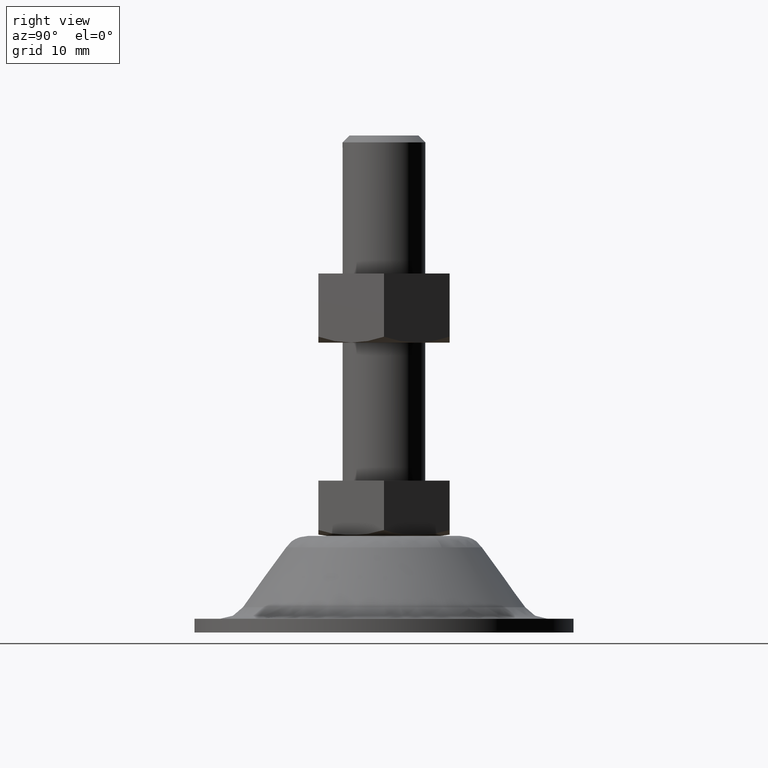
[diagram: clean part render]
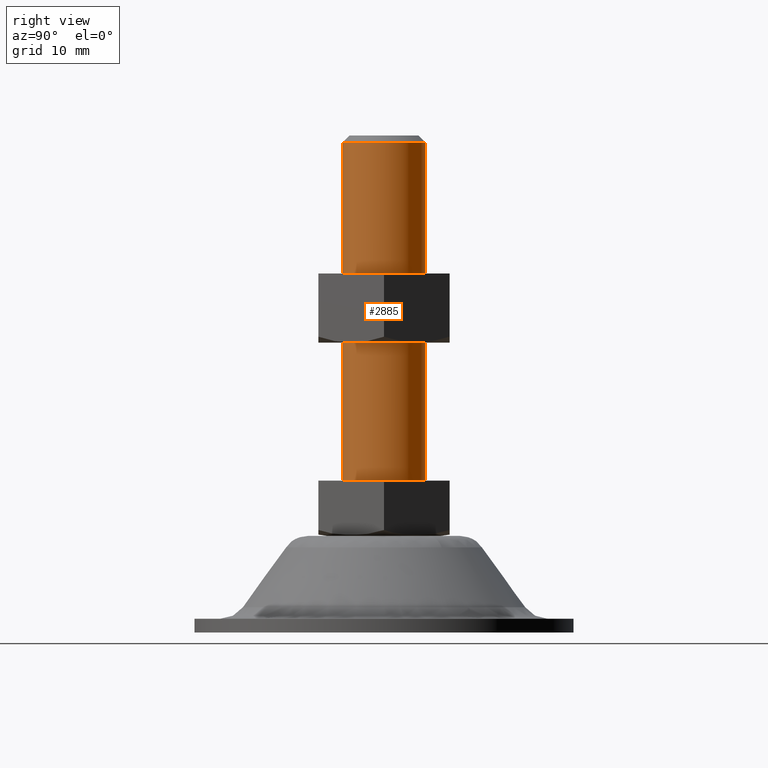
[diagram: same view with one face highlighted and labeled with its STEP entity id]
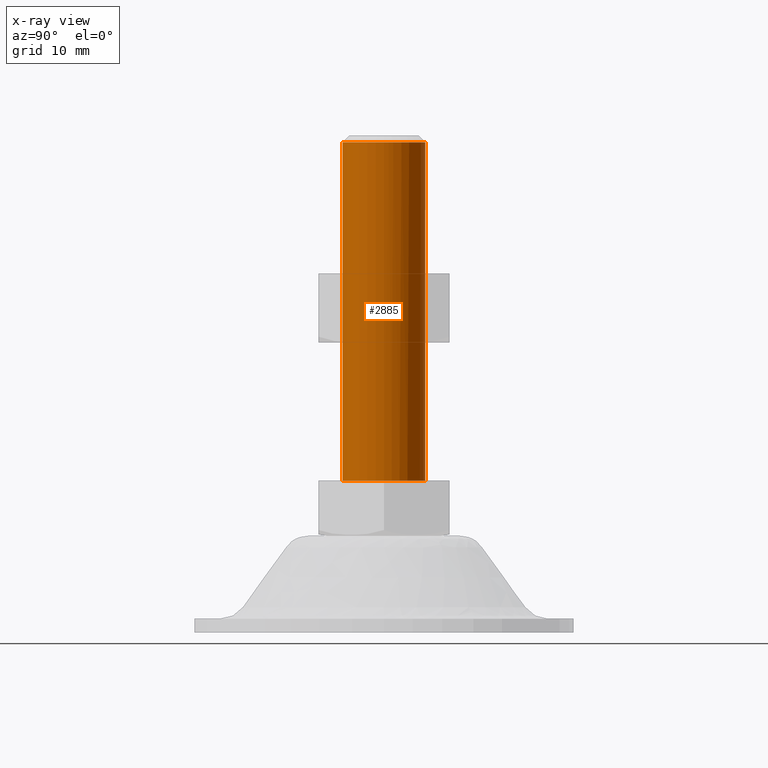
[diagram: x-ray of the same camera — body ghosted, the highlighted face saturated]
A machine part, right view. The second image highlights one B-rep face of the part: STEP entity #2885.
The next image is the same camera in x-ray: the body ghosted, the highlighted face saturated — about 0% of this face is hidden behind the body in this view.
In plain terms, the highlighted face is a freeform B-spline surface patch.
Its self-contained STEP definition (entity closure, byte-faithful):
#2430=CARTESIAN_POINT('',(0.395414218472096,5.986956455167575,70.999999999979764));
#2431=VERTEX_POINT('',#2430);
#2432=CARTESIAN_POINT('',(6.0,0.0,71.0));
#2433=VERTEX_POINT('',#2432);
#2434=CARTESIAN_POINT('',(0.395414218472096,5.986956455167575,70.999999999979764));
#2435=CARTESIAN_POINT('',(6.0,5.616796270400121,70.999999999999972));
#2436=CARTESIAN_POINT('',(6.0,0.0,71.0));
#2444=(BOUNDED_CURVE()B_SPLINE_CURVE(2,(#2434,#2435,#2436),.UNSPECIFIED.,.F.,.U.)B_SPLINE_CURVE_WITH_KNOTS((3,3),(0.761505472935514,1.0),.UNSPECIFIED.)CURVE()GEOMETRIC_REPRESENTATION_ITEM()RATIONAL_B_SPLINE_CURVE((0.974281704163800,0.720586281194763,1.0))REPRESENTATION_ITEM(''));
#2445=EDGE_CURVE('',#2431,#2433,#2444,.T.);
#2493=CARTESIAN_POINT('',(0.470754574447207,-5.981504002392461,71.0));
#2494=VERTEX_POINT('',#2493);
#2510=CARTESIAN_POINT('',(6.0,0.0,71.0));
#2511=CARTESIAN_POINT('',(6.0,-5.546342949800171,71.0));
#2512=CARTESIAN_POINT('',(0.470754574447208,-5.981504002392461,71.0));
#2520=(BOUNDED_CURVE()B_SPLINE_CURVE(2,(#2510,#2511,#2512),.UNSPECIFIED.,.F.,.U.)B_SPLINE_CURVE_WITH_KNOTS((3,3),(0.0,0.236331300628174),.UNSPECIFIED.)CURVE()GEOMETRIC_REPRESENTATION_ITEM()RATIONAL_B_SPLINE_CURVE((1.0,0.723120658610578,0.969723356162230))REPRESENTATION_ITEM(''));
#2521=EDGE_CURVE('',#2433,#2494,#2520,.T.);
#2548=CARTESIAN_POINT('',(-0.470754574447207,5.981504002392461,71.0));
#2549=VERTEX_POINT('',#2548);
#2550=CARTESIAN_POINT('',(-0.470754574447208,5.981504002392461,71.0));
#2551=CARTESIAN_POINT('',(-0.235740642126526,6.000000000000001,71.000000000000014));
#2552=CARTESIAN_POINT('',(0.0,6.0,71.0));
#2553=CARTESIAN_POINT('',(0.197922243283010,6.0,71.0));
#2554=CARTESIAN_POINT('',(0.395414218472096,5.986956455167575,70.999999999979764));
#2562=(BOUNDED_CURVE()B_SPLINE_CURVE(2,(#2550,#2551,#2552,#2553,#2554),.UNSPECIFIED.,.F.,.U.)B_SPLINE_CURVE_WITH_KNOTS((3,2,3),(0.736331300628174,0.750000000000000,0.761505472935514),.UNSPECIFIED.)CURVE()GEOMETRIC_REPRESENTATION_ITEM()RATIONAL_B_SPLINE_CURVE((0.969723356162230,0.983986122575969,1.0,0.986520499991785,0.974281704163799))REPRESENTATION_ITEM(''));
#2563=EDGE_CURVE('',#2549,#2431,#2562,.T.);
#2818=CARTESIAN_POINT('',(0.470754574367073,-5.981504002398766,20.774999999999999));
#2819=CARTESIAN_POINT('',(6.452258576765839,-5.510749428031692,20.774999999999991));
#2820=CARTESIAN_POINT('',(5.981504002398766,0.470754574367073,20.774999999999999));
#2821=CARTESIAN_POINT('',(5.510749428031692,6.452258576765839,20.774999999999991));
#2822=CARTESIAN_POINT('',(-0.470754574367073,5.981504002398766,20.774999999999999));
#2823=CARTESIAN_POINT('',(0.470754574367073,-5.981504002398766,72.255625000000009));
#2824=CARTESIAN_POINT('',(6.452258576765839,-5.510749428031692,72.255625000000009));
#2825=CARTESIAN_POINT('',(5.981504002398766,0.470754574367073,72.255625000000009));
#2826=CARTESIAN_POINT('',(5.510749428031692,6.452258576765839,72.255625000000009));
#2827=CARTESIAN_POINT('',(-0.470754574367073,5.981504002398766,72.255625000000009));
#2835=(BOUNDED_SURFACE()B_SPLINE_SURFACE(2,1,((#2818,#2823),(#2819,#2824),(#2820,#2825),(#2821,#2826),(#2822,#2827)),.UNSPECIFIED.,.F.,.F.,.U.)B_SPLINE_SURFACE_WITH_KNOTS((3,2,3),(2,2),(0.0,9.941125496954280,19.882250993908560),(0.0,51.480625000000032),.UNSPECIFIED.)GEOMETRIC_REPRESENTATION_ITEM()RATIONAL_B_SPLINE_SURFACE(((1.0,1.0),(0.707106781186548,0.707106781186548),(1.0,1.0),(0.707106781186548,0.707106781186548),(1.0,1.0)))REPRESENTATION_ITEM('')SURFACE());
#2836=ORIENTED_EDGE('',*,*,#2521,.T.);
#2837=CARTESIAN_POINT('',(0.470754574447207,-5.981504002392460,22.0));
#2838=VERTEX_POINT('',#2837);
#2839=CARTESIAN_POINT('',(0.470754574447207,-5.981504002392460,22.0));
#2840=CARTESIAN_POINT('',(0.470754574447207,-5.981504002392461,71.0));
#2841=QUASI_UNIFORM_CURVE('',1,(#2839,#2840),.UNSPECIFIED.,.F.,.U.);
#2842=EDGE_CURVE('',#2838,#2494,#2841,.T.);
#2843=ORIENTED_EDGE('',*,*,#2842,.F.);
#2844=CARTESIAN_POINT('',(6.0,0.0,22.0));
#2845=VERTEX_POINT('',#2844);
#2846=CARTESIAN_POINT('',(6.0,0.0,22.0));
#2847=CARTESIAN_POINT('',(6.000000000000001,-5.546342949800173,22.000000000000004));
#2848=CARTESIAN_POINT('',(0.470754574447207,-5.981504002392460,21.999999999999993));
#2856=(BOUNDED_CURVE()B_SPLINE_CURVE(2,(#2846,#2847,#2848),.UNSPECIFIED.,.F.,.U.)B_SPLINE_CURVE_WITH_KNOTS((3,3),(0.0,0.236331300628174),.UNSPECIFIED.)CURVE()GEOMETRIC_REPRESENTATION_ITEM()RATIONAL_B_SPLINE_CURVE((1.0,0.723120658610578,0.969723356162230))REPRESENTATION_ITEM(''));
#2857=EDGE_CURVE('',#2845,#2838,#2856,.T.);
#2858=ORIENTED_EDGE('',*,*,#2857,.F.);
#2859=CARTESIAN_POINT('',(-0.470754574447207,5.981504002392461,22.0));
#2860=VERTEX_POINT('',#2859);
#2861=CARTESIAN_POINT('',(-0.470754574447208,5.981504002392461,21.999999999999996));
#2862=CARTESIAN_POINT('',(-0.235740642126526,6.000000000000001,22.000000000000004));
#2863=CARTESIAN_POINT('',(0.0,6.0,22.0));
#2864=CARTESIAN_POINT('',(6.0,6.0,22.000000000000007));
#2865=CARTESIAN_POINT('',(6.0,0.0,22.0));
#2873=(BOUNDED_CURVE()B_SPLINE_CURVE(2,(#2861,#2862,#2863,#2864,#2865),.UNSPECIFIED.,.F.,.U.)B_SPLINE_CURVE_WITH_KNOTS((3,2,3),(0.736331300628174,0.750000000000000,1.0),.UNSPECIFIED.)CURVE()GEOMETRIC_REPRESENTATION_ITEM()RATIONAL_B_SPLINE_CURVE((0.969723356162230,0.983986122575969,1.0,0.707106781186548,1.0))REPRESENTATION_ITEM(''));
#2874=EDGE_CURVE('',#2860,#2845,#2873,.T.);
#2875=ORIENTED_EDGE('',*,*,#2874,.F.);
#2876=CARTESIAN_POINT('',(-0.470754574447207,5.981504002392461,22.0));
#2877=CARTESIAN_POINT('',(-0.470754574447207,5.981504002392461,71.0));
#2878=QUASI_UNIFORM_CURVE('',1,(#2876,#2877),.UNSPECIFIED.,.F.,.U.);
#2879=EDGE_CURVE('',#2860,#2549,#2878,.T.);
#2880=ORIENTED_EDGE('',*,*,#2879,.T.);
#2881=ORIENTED_EDGE('',*,*,#2563,.T.);
#2882=ORIENTED_EDGE('',*,*,#2445,.T.);
#2883=EDGE_LOOP('',(#2836,#2843,#2858,#2875,#2880,#2881,#2882));
#2884=FACE_OUTER_BOUND('',#2883,.T.);
#2885=ADVANCED_FACE('',(#2884),#2835,.T.);